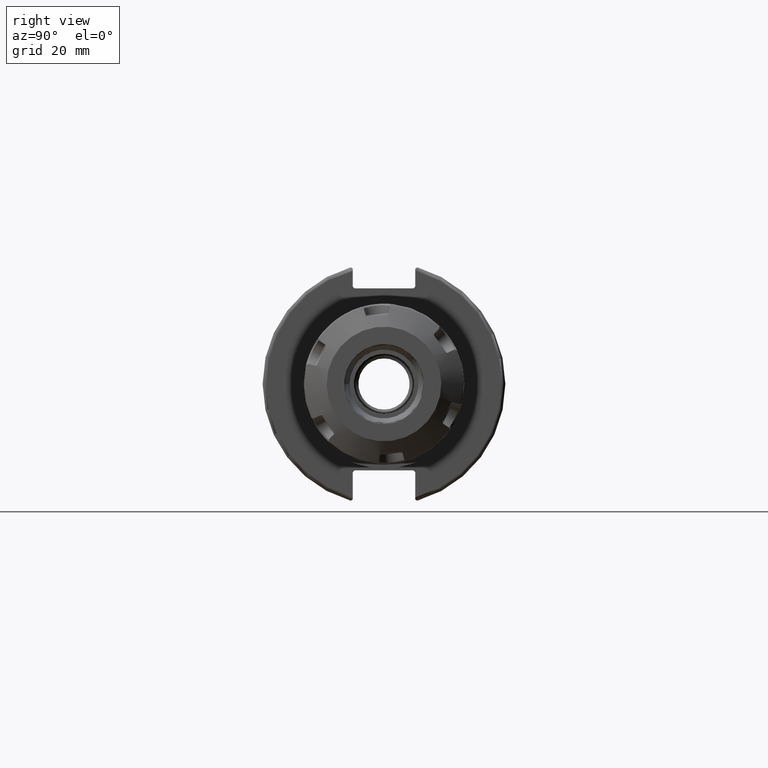
[diagram: clean part render]
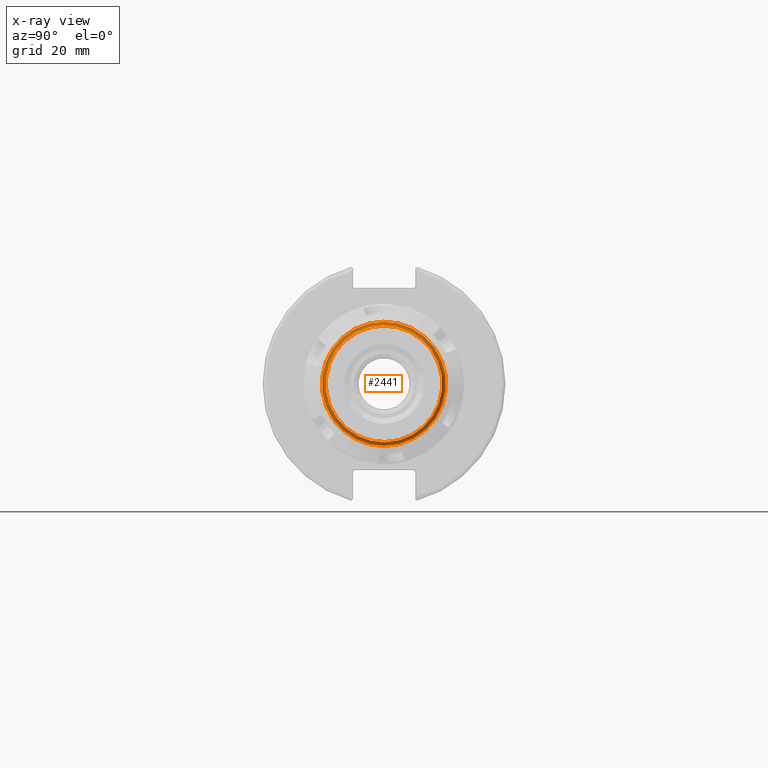
[diagram: x-ray — body ghosted, one internal face saturated and labeled with its STEP entity id]
A machine part, right view, then the same camera in x-ray: the body is ghosted and one INTERNAL B-rep face — a face not visible from any outside direction — is saturated and labeled: STEP entity #2441.
In plain terms, the highlighted toroidal blend (fillet) surface has major radius 16.25 mm and minor (blend) radius 1 mm.
Its self-contained STEP definition (entity closure, byte-faithful):
#207=TOROIDAL_SURFACE('',#2711,16.25,1.);
#396=FACE_OUTER_BOUND('',#549,.T.);
#549=EDGE_LOOP('',(#1956,#1957,#1958,#1959,#1960));
#1013=CIRCLE('',#2710,16.25);
#1014=CIRCLE('',#2712,1.);
#1015=CIRCLE('',#2713,15.25);
#1016=CIRCLE('',#2714,15.25);
#1169=VERTEX_POINT('',#3947);
#1170=VERTEX_POINT('',#3950);
#1171=VERTEX_POINT('',#3952);
#1448=EDGE_CURVE('',#1169,#1169,#1013,.T.);
#1449=EDGE_CURVE('',#1169,#1170,#1014,.T.);
#1450=EDGE_CURVE('',#1170,#1171,#1015,.T.);
#1451=EDGE_CURVE('',#1171,#1170,#1016,.T.);
#1956=ORIENTED_EDGE('',*,*,#1448,.F.);
#1957=ORIENTED_EDGE('',*,*,#1449,.T.);
#1958=ORIENTED_EDGE('',*,*,#1450,.T.);
#1959=ORIENTED_EDGE('',*,*,#1451,.T.);
#1960=ORIENTED_EDGE('',*,*,#1449,.F.);
#2441=ADVANCED_FACE('',(#396),#207,.T.);
#2710=AXIS2_PLACEMENT_3D('',#3948,#3143,#3144);
#2711=AXIS2_PLACEMENT_3D('',#3949,#3145,#3146);
#2712=AXIS2_PLACEMENT_3D('',#3951,#3147,#3148);
#2713=AXIS2_PLACEMENT_3D('',#3953,#3149,#3150);
#2714=AXIS2_PLACEMENT_3D('',#3954,#3151,#3152);
#3143=DIRECTION('center_axis',(1.,0.,0.));
#3144=DIRECTION('ref_axis',(0.,1.,0.));
#3145=DIRECTION('center_axis',(1.,0.,0.));
#3146=DIRECTION('ref_axis',(0.,0.999979980079491,-0.00632767257534494));
#3147=DIRECTION('center_axis',(0.,-0.00632767257534482,-0.999979980079491));
#3148=DIRECTION('ref_axis',(0.,-0.999979980079491,0.00632767257534482));
#3149=DIRECTION('center_axis',(1.,0.,0.));
#3150=DIRECTION('ref_axis',(0.,1.,0.));
#3151=DIRECTION('center_axis',(1.,0.,0.));
#3152=DIRECTION('ref_axis',(0.,1.,0.));
#3947=CARTESIAN_POINT('',(-10.,-16.2496746762917,0.102824679349353));
#3948=CARTESIAN_POINT('Origin',(-10.,0.,0.));
#3949=CARTESIAN_POINT('Origin',(-9.,0.,0.));
#3950=CARTESIAN_POINT('',(-9.,-15.2496946962122,0.0964970067740085));
#3951=CARTESIAN_POINT('Origin',(-9.,-16.2496746762917,0.102824679349353));
#3952=CARTESIAN_POINT('',(-9.,15.25,1.86758636869971E-15));
#3953=CARTESIAN_POINT('Origin',(-9.,0.,0.));
#3954=CARTESIAN_POINT('Origin',(-9.,0.,0.));